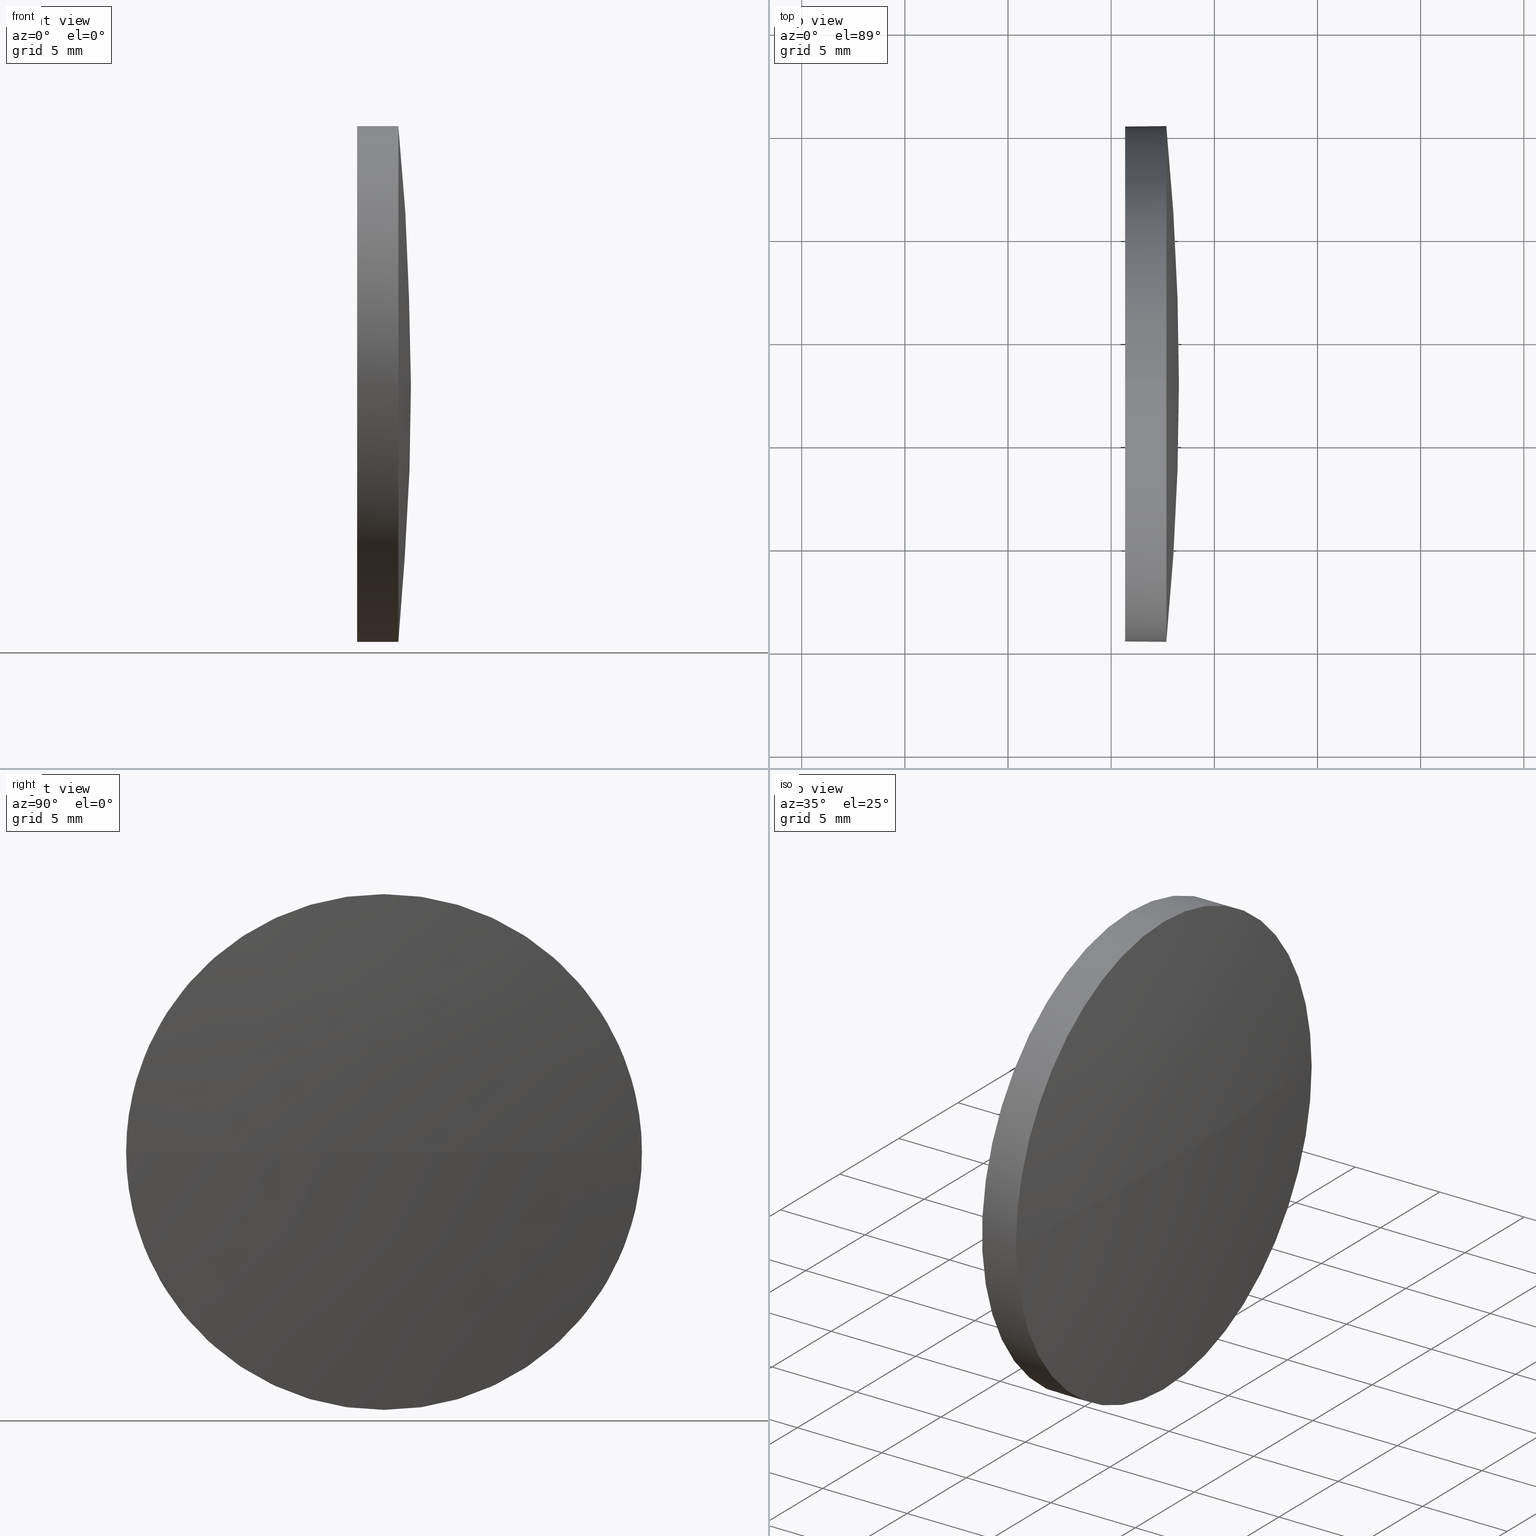
[diagram: canonical four-view strip — front | top / right | iso, engineering-drawing reading convention]
A machine part, canonical four-view strip (front | top / right | iso — engineering-drawing reading convention). The complete STEP part file that produces these views, byte-faithful:
ISO-10303-21;
HEADER;
FILE_DESCRIPTION (( 'STEP AP214' ),
    '1' );
FILE_NAME ('100134.STEP',
    '2019-05-15T02:03:24',
    ( '' ),
    ( '' ),
    'SwSTEP 2.0',
    'SolidWorks 2016',
    '' );
FILE_SCHEMA (( 'AUTOMOTIVE_DESIGN' ));
ENDSEC;

DATA;
#1 = DIRECTION ( 'NONE',  ( -1.000000000000000000, -0.0000000000000000000, -0.0000000000000000000 ) ) ;
#2 =( GEOMETRIC_REPRESENTATION_CONTEXT ( 3 ) GLOBAL_UNCERTAINTY_ASSIGNED_CONTEXT ( ( #156 ) ) GLOBAL_UNIT_ASSIGNED_CONTEXT ( ( #96, #171, #15 ) ) REPRESENTATION_CONTEXT ( 'NONE', 'WORKASPACE' ) );
#3 =( NAMED_UNIT ( * ) PLANE_ANGLE_UNIT ( ) SI_UNIT ( $, .RADIAN. ) );
#4 = VERTEX_POINT ( 'NONE', #147 ) ;
#5 = CARTESIAN_POINT ( 'NONE',  ( 432.6734626565939800, 55.36771829137188700, -1.530808498934185000E-015 ) ) ;
#6 = MECHANICAL_DESIGN_GEOMETRIC_PRESENTATION_REPRESENTATION (  '', ( #184 ), #57 ) ;
#7 = UNCERTAINTY_MEASURE_WITH_UNIT (LENGTH_MEASURE( 1.000000000000000100E-005 ), #177, 'distance_accuracy_value', 'NONE');
#8 = EDGE_LOOP ( 'NONE', ( #62, #90, #150, #166, #78 ) ) ;
#9 = AXIS2_PLACEMENT_3D ( 'NONE', #70, #13, #59 ) ;
#10 = EDGE_LOOP ( 'NONE', ( #21, #42, #170, #152 ) ) ;
#11 = CIRCLE ( 'NONE', #161, 12.49999999999999600 ) ;
#12 = DIRECTION ( 'NONE',  ( 0.0000000000000000000, 0.0000000000000000000, -1.000000000000000000 ) ) ;
#13 = DIRECTION ( 'NONE',  ( 0.0000000000000000000, 1.224646799147353200E-016, -1.000000000000000000 ) ) ;
#14 = ADVANCED_FACE ( 'NONE', ( #140 ), #183, .T. ) ;
#15 =( NAMED_UNIT ( * ) SI_UNIT ( $, .STERADIAN. ) SOLID_ANGLE_UNIT ( ) );
#16 = EDGE_CURVE ( 'NONE', #118, #69, #74, .T. ) ;
#17 = CARTESIAN_POINT ( 'NONE',  ( 432.6734626565939800, 67.86771829137194300, 0.0000000000000000000 ) ) ;
#18 = DIRECTION ( 'NONE',  ( -1.000000000000000000, -0.0000000000000000000, -0.0000000000000000000 ) ) ;
#19 = AXIS2_PLACEMENT_3D ( 'NONE', #117, #1, #86 ) ;
#20 = FILL_AREA_STYLE_COLOUR ( '', #85 ) ;
#21 = ORIENTED_EDGE ( 'NONE', *, *, #49, .F. ) ;
#22 = ORIENTED_EDGE ( 'NONE', *, *, #49, .T. ) ;
#23 = ADVANCED_FACE ( 'NONE', ( #52 ), #153, .F. ) ;
#24 = EDGE_LOOP ( 'NONE', ( #47, #131 ) ) ;
#25 =( NAMED_UNIT ( * ) SI_UNIT ( $, .STERADIAN. ) SOLID_ANGLE_UNIT ( ) );
#26 = LINE ( 'NONE', #46, #56 ) ;
#27 = EDGE_LOOP ( 'NONE', ( #157, #22, #143, #37 ) ) ;
#28 = CARTESIAN_POINT ( 'NONE',  ( 433.2834626565940000, 67.86771829137184400, 0.0000000000000000000 ) ) ;
#29 = CARTESIAN_POINT ( 'NONE',  ( 304.9046921647905600, 67.86771829137183000, 0.0000000000000000000 ) ) ;
#30 = DIRECTION ( 'NONE',  ( 1.000000000000000000, 0.0000000000000000000, 0.0000000000000000000 ) ) ;
#31 = APPLICATION_CONTEXT ( 'automotive_design' ) ;
#32 = VERTEX_POINT ( 'NONE', #28 ) ;
#33 = DIRECTION ( 'NONE',  ( 0.0000000000000000000, 0.0000000000000000000, 1.000000000000000000 ) ) ;
#34 = APPLICATION_PROTOCOL_DEFINITION ( 'draft international standard', 'automotive_design', 1998, #31 ) ;
#35 = DIRECTION ( 'NONE',  ( 0.0000000000000000000, 0.0000000000000000000, 1.000000000000000000 ) ) ;
#36 = DIRECTION ( 'NONE',  ( -1.000000000000000000, -0.0000000000000000000, -0.0000000000000000000 ) ) ;
#37 = ORIENTED_EDGE ( 'NONE', *, *, #163, .F. ) ;
#38 = SPHERICAL_SURFACE ( 'NONE', #148, 128.3787704918034600 ) ;
#39 = PRESENTATION_LAYER_ASSIGNMENT (  '', '', ( #184 ) ) ;
#40 = CYLINDRICAL_SURFACE ( 'NONE', #75, 12.49999999999999600 ) ;
#41 = EDGE_CURVE ( 'NONE', #32, #4, #94, .T. ) ;
#42 = ORIENTED_EDGE ( 'NONE', *, *, #41, .T. ) ;
#43 = MANIFOLD_SOLID_BREP ( '��ת1', #182 ) ;
#44 = AXIS2_PLACEMENT_3D ( 'NONE', #60, #128, #45 ) ;
#45 = DIRECTION ( 'NONE',  ( 0.0000000000000000000, 0.0000000000000000000, 1.000000000000000000 ) ) ;
#46 = CARTESIAN_POINT ( 'NONE',  ( 428.3078467538330200, 67.86771829137194300, -12.49999999999999600 ) ) ;
#47 = ORIENTED_EDGE ( 'NONE', *, *, #174, .T. ) ;
#48 = PRESENTATION_STYLE_ASSIGNMENT (( #129 ) ) ;
#49 = EDGE_CURVE ( 'NONE', #32, #118, #104, .T. ) ;
#50 = AXIS2_PLACEMENT_3D ( 'NONE', #100, #115, #35 ) ;
#51 = PRODUCT_DEFINITION_CONTEXT ( 'detailed design', #31, 'design' ) ;
#52 = FACE_OUTER_BOUND ( 'NONE', #24, .T. ) ;
#53 = CIRCLE ( 'NONE', #55, 12.49999999999999600 ) ;
#54 = EDGE_CURVE ( 'NONE', #137, #103, #133, .T. ) ;
#55 = AXIS2_PLACEMENT_3D ( 'NONE', #17, #36, #64 ) ;
#56 = VECTOR ( 'NONE', #83, 1000.000000000000000 ) ;
#57 =( GEOMETRIC_REPRESENTATION_CONTEXT ( 3 ) GLOBAL_UNCERTAINTY_ASSIGNED_CONTEXT ( ( #107 ) ) GLOBAL_UNIT_ASSIGNED_CONTEXT ( ( #65, #165, #25 ) ) REPRESENTATION_CONTEXT ( 'NONE', 'WORKASPACE' ) );
#58 = COLOUR_RGB ( '',1.000000000000000000, 1.000000000000000000, 1.000000000000000000 ) ;
#59 = DIRECTION ( 'NONE',  ( 0.0000000000000000000, 1.000000000000000000, 1.224646799147353200E-016 ) ) ;
#60 = CARTESIAN_POINT ( 'NONE',  ( 430.6734626565939800, 67.86771829137194300, 0.0000000000000000000 ) ) ;
#61 = DIRECTION ( 'NONE',  ( 0.0000000000000000000, 0.0000000000000000000, 1.000000000000000000 ) ) ;
#62 = ORIENTED_EDGE ( 'NONE', *, *, #163, .T. ) ;
#63 = CARTESIAN_POINT ( 'NONE',  ( 430.6734626565939800, 67.86771829137194300, 12.49999999999999600 ) ) ;
#64 = DIRECTION ( 'NONE',  ( 0.0000000000000000000, 0.0000000000000000000, 1.000000000000000000 ) ) ;
#65 =( LENGTH_UNIT ( ) NAMED_UNIT ( * ) SI_UNIT ( .MILLI., .METRE. ) );
#66 = SURFACE_STYLE_FILL_AREA ( #154 ) ;
#67 = EDGE_CURVE ( 'NONE', #122, #118, #11, .T. ) ;
#68 =( GEOMETRIC_REPRESENTATION_CONTEXT ( 3 ) GLOBAL_UNCERTAINTY_ASSIGNED_CONTEXT ( ( #7 ) ) GLOBAL_UNIT_ASSIGNED_CONTEXT ( ( #177, #3, #101 ) ) REPRESENTATION_CONTEXT ( 'NONE', 'WORKASPACE' ) );
#69 = VERTEX_POINT ( 'NONE', #172 ) ;
#70 = CARTESIAN_POINT ( 'NONE',  ( 304.9046921647905600, 67.86771829137183000, 0.0000000000000000000 ) ) ;
#71 = ADVANCED_FACE ( 'NONE', ( #180 ), #40, .T. ) ;
#72 = DIRECTION ( 'NONE',  ( 0.0000000000000000000, 1.000000000000000000, 0.0000000000000000000 ) ) ;
#73 = DIRECTION ( 'NONE',  ( -1.000000000000000000, -0.0000000000000000000, -0.0000000000000000000 ) ) ;
#74 = CIRCLE ( 'NONE', #106, 12.49999999999999600 ) ;
#75 = AXIS2_PLACEMENT_3D ( 'NONE', #134, #18, #116 ) ;
#76 = AXIS2_PLACEMENT_3D ( 'NONE', #109, #108, #144 ) ;
#77 = DIRECTION ( 'NONE',  ( 1.000000000000000000, 0.0000000000000000000, 0.0000000000000000000 ) ) ;
#78 = ORIENTED_EDGE ( 'NONE', *, *, #98, .T. ) ;
#79 = SURFACE_STYLE_FILL_AREA ( #145 ) ;
#80 = SURFACE_STYLE_USAGE ( .BOTH. , #127 ) ;
#81 = CARTESIAN_POINT ( 'NONE',  ( 428.3078467538330200, 67.86771829137194300, 0.0000000000000000000 ) ) ;
#82 = ORIENTED_EDGE ( 'NONE', *, *, #67, .T. ) ;
#83 = DIRECTION ( 'NONE',  ( -1.000000000000000000, -0.0000000000000000000, -0.0000000000000000000 ) ) ;
#84 = SHAPE_DEFINITION_REPRESENTATION ( #121, #162 ) ;
#85 = COLOUR_RGB ( '',1.000000000000000000, 1.000000000000000000, 1.000000000000000000 ) ;
#86 = DIRECTION ( 'NONE',  ( 0.0000000000000000000, 0.0000000000000000000, 1.000000000000000000 ) ) ;
#87 = ORIENTED_EDGE ( 'NONE', *, *, #110, .F. ) ;
#88 = AXIS2_PLACEMENT_3D ( 'NONE', #167, #124, #77 ) ;
#89 = PRESENTATION_STYLE_ASSIGNMENT (( #80 ) ) ;
#90 = ORIENTED_EDGE ( 'NONE', *, *, #110, .T. ) ;
#91 = APPLICATION_CONTEXT ( 'automotive_design' ) ;
#92 = CIRCLE ( 'NONE', #19, 12.49999999999999600 ) ;
#93 = CARTESIAN_POINT ( 'NONE',  ( 430.6734626565939800, 67.86771829137194300, 0.0000000000000000000 ) ) ;
#94 = CIRCLE ( 'NONE', #76, 128.3787704918034600 ) ;
#95 = DIRECTION ( 'NONE',  ( -1.000000000000000000, -0.0000000000000000000, -0.0000000000000000000 ) ) ;
#96 =( LENGTH_UNIT ( ) NAMED_UNIT ( * ) SI_UNIT ( .MILLI., .METRE. ) );
#97 = CARTESIAN_POINT ( 'NONE',  ( 430.6734626565939800, 67.86771829137194300, -12.49999999999999600 ) ) ;
#98 = EDGE_CURVE ( 'NONE', #69, #4, #169, .T. ) ;
#99 = CARTESIAN_POINT ( 'NONE',  ( 432.6734626565939800, 67.86771829137194300, 0.0000000000000000000 ) ) ;
#100 = CARTESIAN_POINT ( 'NONE',  ( 432.6734626565939800, 67.86771829137194300, 0.0000000000000000000 ) ) ;
#101 =( NAMED_UNIT ( * ) SI_UNIT ( $, .STERADIAN. ) SOLID_ANGLE_UNIT ( ) );
#102 = PRODUCT_CONTEXT ( 'NONE', #91, 'mechanical' ) ;
#103 = VERTEX_POINT ( 'NONE', #63 ) ;
#104 = CIRCLE ( 'NONE', #9, 128.3787704918034600 ) ;
#105 = ORIENTED_EDGE ( 'NONE', *, *, #126, .T. ) ;
#106 = AXIS2_PLACEMENT_3D ( 'NONE', #185, #95, #61 ) ;
#107 = UNCERTAINTY_MEASURE_WITH_UNIT (LENGTH_MEASURE( 1.000000000000000100E-005 ), #65, 'distance_accuracy_value', 'NONE');
#108 = DIRECTION ( 'NONE',  ( -0.0000000000000000000, 0.0000000000000000000, 1.000000000000000000 ) ) ;
#109 = CARTESIAN_POINT ( 'NONE',  ( 304.9046921647905600, 67.86771829137183000, 0.0000000000000000000 ) ) ;
#110 = EDGE_CURVE ( 'NONE', #122, #137, #26, .T. ) ;
#111 = DIRECTION ( 'NONE',  ( -0.0000000000000000000, 0.0000000000000000000, -1.000000000000000000 ) ) ;
#112 = DIRECTION ( 'NONE',  ( -1.000000000000000000, -0.0000000000000000000, -0.0000000000000000000 ) ) ;
#113 = DIRECTION ( 'NONE',  ( -1.000000000000000000, -0.0000000000000000000, -0.0000000000000000000 ) ) ;
#114 = ADVANCED_FACE ( 'NONE', ( #123 ), #138, .T. ) ;
#115 = DIRECTION ( 'NONE',  ( -1.000000000000000000, -0.0000000000000000000, -0.0000000000000000000 ) ) ;
#116 = DIRECTION ( 'NONE',  ( 0.0000000000000000000, 0.0000000000000000000, 1.000000000000000000 ) ) ;
#117 = CARTESIAN_POINT ( 'NONE',  ( 430.6734626565939800, 67.86771829137194300, 0.0000000000000000000 ) ) ;
#118 = VERTEX_POINT ( 'NONE', #5 ) ;
#119 = CARTESIAN_POINT ( 'NONE',  ( 428.3078467538330200, 67.86771829137194300, 12.49999999999999600 ) ) ;
#120 = AXIS2_PLACEMENT_3D ( 'NONE', #81, #112, #33 ) ;
#121 = PRODUCT_DEFINITION_SHAPE ( 'NONE', 'NONE',  #136 ) ;
#122 = VERTEX_POINT ( 'NONE', #178 ) ;
#123 = FACE_OUTER_BOUND ( 'NONE', #10, .T. ) ;
#124 = DIRECTION ( 'NONE',  ( 0.0000000000000000000, 0.0000000000000000000, 1.000000000000000000 ) ) ;
#125 = ORIENTED_EDGE ( 'NONE', *, *, #54, .F. ) ;
#126 = EDGE_CURVE ( 'NONE', #69, #103, #139, .T. ) ;
#127 = SURFACE_SIDE_STYLE ('',( #66 ) ) ;
#128 = DIRECTION ( 'NONE',  ( -1.000000000000000000, -0.0000000000000000000, -0.0000000000000000000 ) ) ;
#129 = SURFACE_STYLE_USAGE ( .BOTH. , #173 ) ;
#130 = AXIS2_PLACEMENT_3D ( 'NONE', #93, #30, #12 ) ;
#131 = ORIENTED_EDGE ( 'NONE', *, *, #54, .T. ) ;
#132 = DIRECTION ( 'NONE',  ( -0.0000000000000000000, 0.0000000000000000000, -1.000000000000000000 ) ) ;
#133 = CIRCLE ( 'NONE', #44, 12.49999999999999600 ) ;
#134 = CARTESIAN_POINT ( 'NONE',  ( 428.3078467538330200, 67.86771829137194300, 0.0000000000000000000 ) ) ;
#135 = ORIENTED_EDGE ( 'NONE', *, *, #16, .T. ) ;
#136 = PRODUCT_DEFINITION ( 'δ֪', '', #175, #51 ) ;
#137 = VERTEX_POINT ( 'NONE', #97 ) ;
#138 = SPHERICAL_SURFACE ( 'NONE', #151, 128.3787704918034600 ) ;
#139 = LINE ( 'NONE', #119, #160 ) ;
#140 = FACE_OUTER_BOUND ( 'NONE', #142, .T. ) ;
#141 = PRODUCT_RELATED_PRODUCT_CATEGORY ( 'part', '', ( #164 ) ) ;
#142 = EDGE_LOOP ( 'NONE', ( #87, #82, #135, #105, #125 ) ) ;
#143 = ORIENTED_EDGE ( 'NONE', *, *, #67, .F. ) ;
#144 = DIRECTION ( 'NONE',  ( 1.000000000000000000, 0.0000000000000000000, 0.0000000000000000000 ) ) ;
#145 = FILL_AREA_STYLE ('',( #20 ) ) ;
#146 = ADVANCED_FACE ( 'NONE', ( #159 ), #38, .T. ) ;
#147 = CARTESIAN_POINT ( 'NONE',  ( 432.6734626565939800, 80.36771829137190100, 0.0000000000000000000 ) ) ;
#148 = AXIS2_PLACEMENT_3D ( 'NONE', #158, #111, #72 ) ;
#149 = DIRECTION ( 'NONE',  ( 0.0000000000000000000, 1.000000000000000000, 0.0000000000000000000 ) ) ;
#150 = ORIENTED_EDGE ( 'NONE', *, *, #174, .F. ) ;
#151 = AXIS2_PLACEMENT_3D ( 'NONE', #29, #132, #149 ) ;
#152 = ORIENTED_EDGE ( 'NONE', *, *, #16, .F. ) ;
#153 = PLANE ( 'NONE',  #130 ) ;
#154 = FILL_AREA_STYLE ('',( #186 ) ) ;
#155 = STYLED_ITEM ( 'NONE', ( #89 ), #43 ) ;
#156 = UNCERTAINTY_MEASURE_WITH_UNIT (LENGTH_MEASURE( 1.000000000000000100E-005 ), #96, 'distance_accuracy_value', 'NONE');
#157 = ORIENTED_EDGE ( 'NONE', *, *, #41, .F. ) ;
#158 = CARTESIAN_POINT ( 'NONE',  ( 304.9046921647905600, 67.86771829137183000, 0.0000000000000000000 ) ) ;
#159 = FACE_OUTER_BOUND ( 'NONE', #27, .T. ) ;
#160 = VECTOR ( 'NONE', #113, 1000.000000000000000 ) ;
#161 = AXIS2_PLACEMENT_3D ( 'NONE', #99, #73, #176 ) ;
#162 = ADVANCED_BREP_SHAPE_REPRESENTATION ( '100134', ( #43, #88 ), #68 ) ;
#163 = EDGE_CURVE ( 'NONE', #4, #122, #53, .T. ) ;
#164 = PRODUCT ( '100134', '100134', '', ( #102 ) ) ;
#165 =( NAMED_UNIT ( * ) PLANE_ANGLE_UNIT ( ) SI_UNIT ( $, .RADIAN. ) );
#166 = ORIENTED_EDGE ( 'NONE', *, *, #126, .F. ) ;
#167 = CARTESIAN_POINT ( 'NONE',  ( 0.0000000000000000000, 0.0000000000000000000, 0.0000000000000000000 ) ) ;
#168 = PRESENTATION_LAYER_ASSIGNMENT (  '', '', ( #155 ) ) ;
#169 = CIRCLE ( 'NONE', #50, 12.49999999999999600 ) ;
#170 = ORIENTED_EDGE ( 'NONE', *, *, #98, .F. ) ;
#171 =( NAMED_UNIT ( * ) PLANE_ANGLE_UNIT ( ) SI_UNIT ( $, .RADIAN. ) );
#172 = CARTESIAN_POINT ( 'NONE',  ( 432.6734626565939800, 67.86771829137194300, 12.49999999999999600 ) ) ;
#173 = SURFACE_SIDE_STYLE ('',( #79 ) ) ;
#174 = EDGE_CURVE ( 'NONE', #103, #137, #92, .T. ) ;
#175 = PRODUCT_DEFINITION_FORMATION_WITH_SPECIFIED_SOURCE ( '�κ�', '', #164, .NOT_KNOWN. ) ;
#176 = DIRECTION ( 'NONE',  ( 0.0000000000000000000, 0.0000000000000000000, 1.000000000000000000 ) ) ;
#177 =( LENGTH_UNIT ( ) NAMED_UNIT ( * ) SI_UNIT ( .MILLI., .METRE. ) );
#178 = CARTESIAN_POINT ( 'NONE',  ( 432.6734626565939800, 67.86771829137194300, -12.49999999999999600 ) ) ;
#179 = MECHANICAL_DESIGN_GEOMETRIC_PRESENTATION_REPRESENTATION (  '', ( #155 ), #2 ) ;
#180 = FACE_OUTER_BOUND ( 'NONE', #8, .T. ) ;
#181 = APPLICATION_PROTOCOL_DEFINITION ( 'draft international standard', 'automotive_design', 1998, #91 ) ;
#182 = CLOSED_SHELL ( 'NONE', ( #71, #146, #114, #14, #23 ) ) ;
#183 = CYLINDRICAL_SURFACE ( 'NONE', #120, 12.49999999999999600 ) ;
#184 = STYLED_ITEM ( 'NONE', ( #48 ), #162 ) ;
#185 = CARTESIAN_POINT ( 'NONE',  ( 432.6734626565939800, 67.86771829137194300, 0.0000000000000000000 ) ) ;
#186 = FILL_AREA_STYLE_COLOUR ( '', #58 ) ;
ENDSEC;
END-ISO-10303-21;
